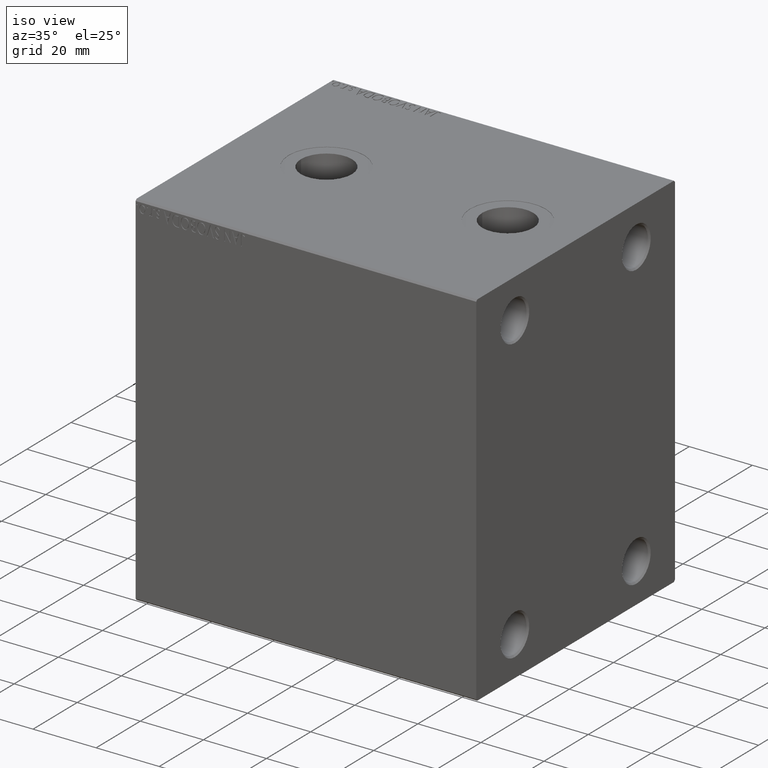
[diagram: clean part render]
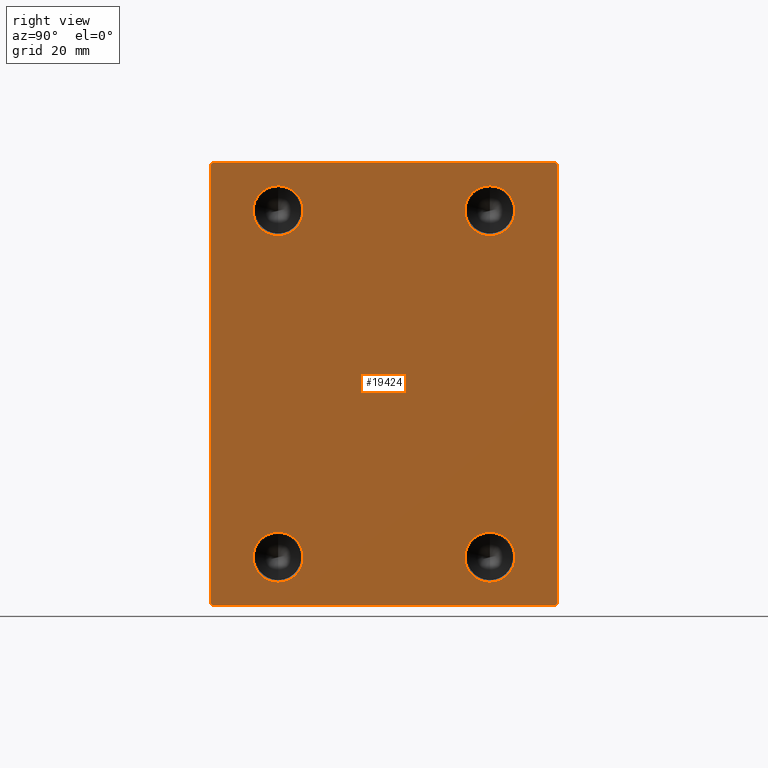
[diagram: tour spotlight — one face highlighted and labeled with its STEP entity id]
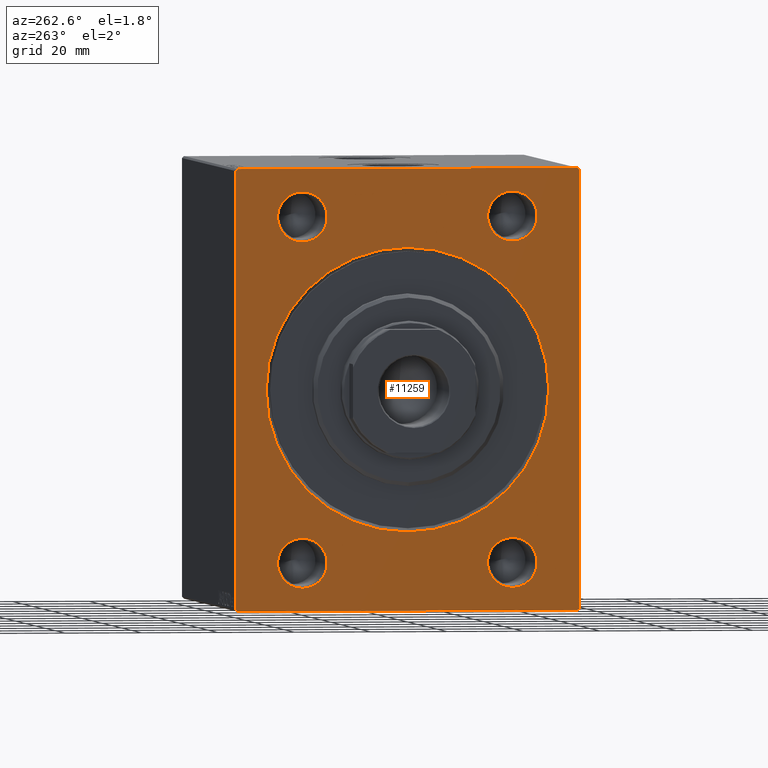
[diagram: tour spotlight — one face highlighted and labeled with its STEP entity id]
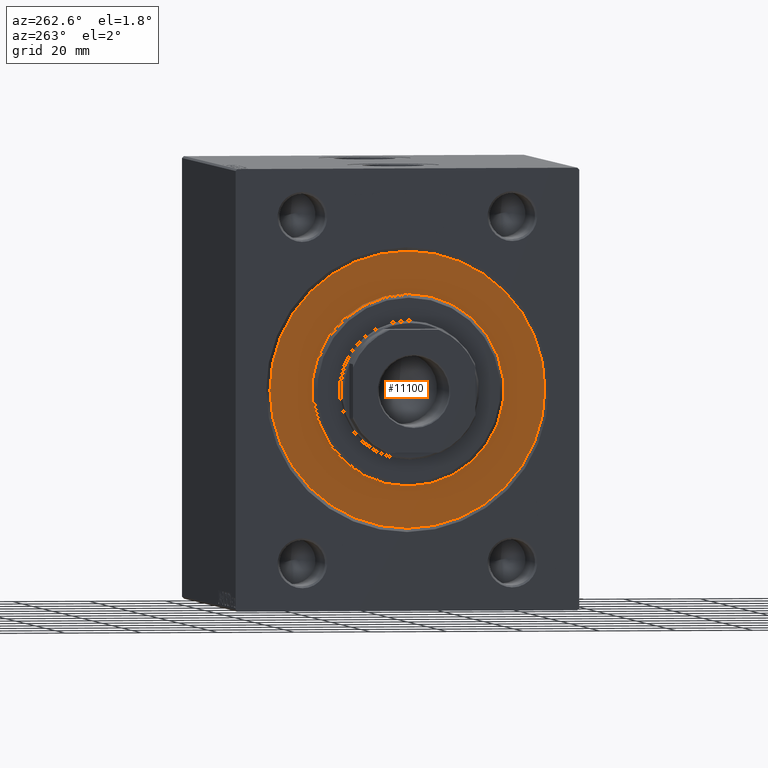
[diagram: tour spotlight — one face highlighted and labeled with its STEP entity id]
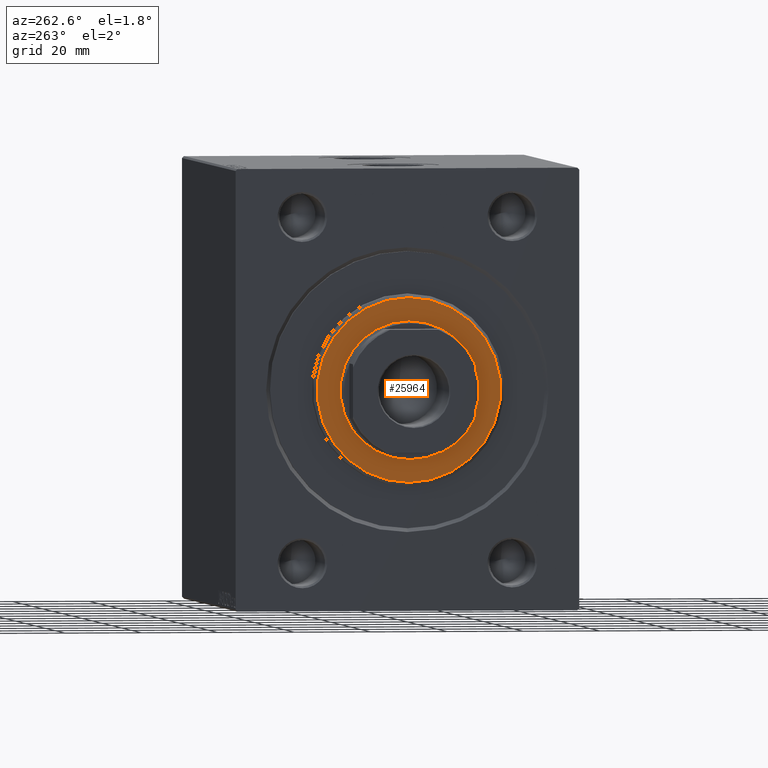
[diagram: tour spotlight — one face highlighted and labeled with its STEP entity id]
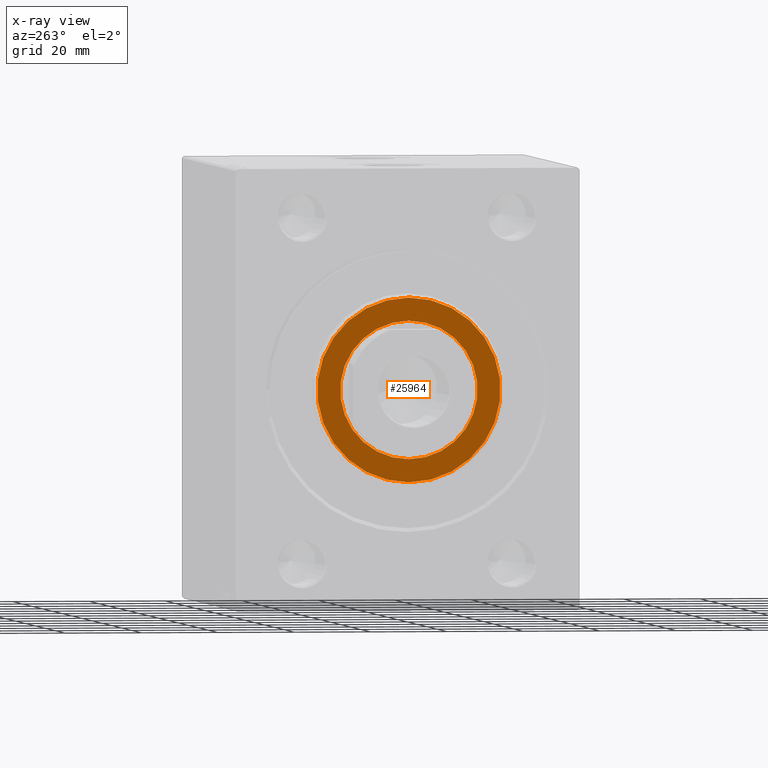
[diagram: x-ray of the same camera — body ghosted, this tour face saturated]
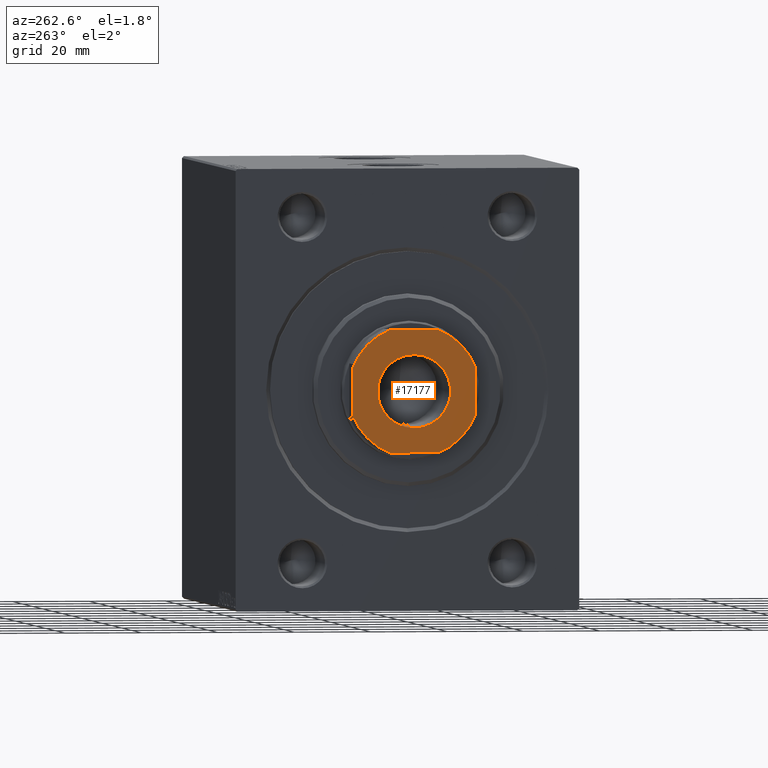
[diagram: tour spotlight — one face highlighted and labeled with its STEP entity id]
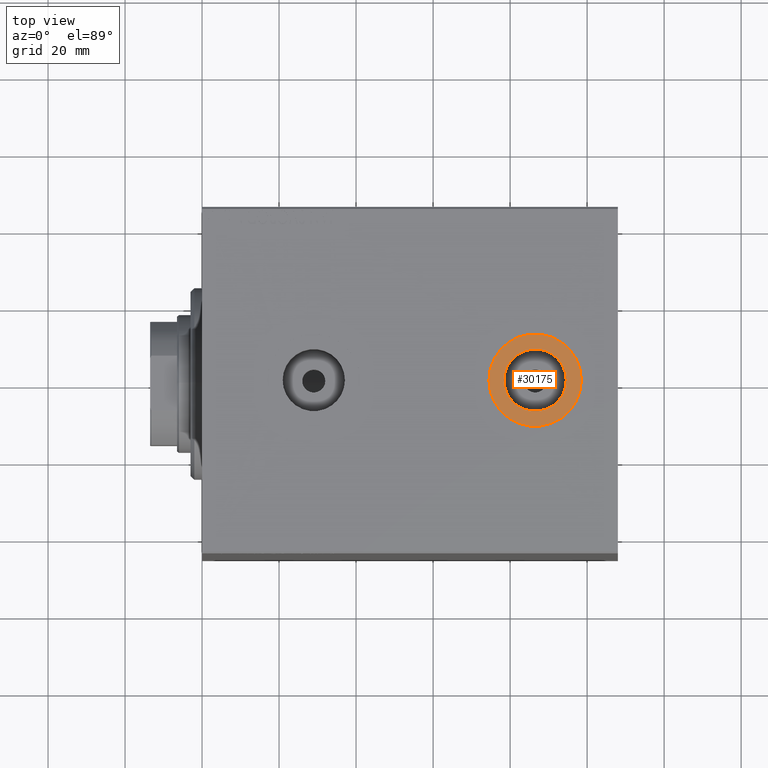
[diagram: tour spotlight — one face highlighted and labeled with its STEP entity id]
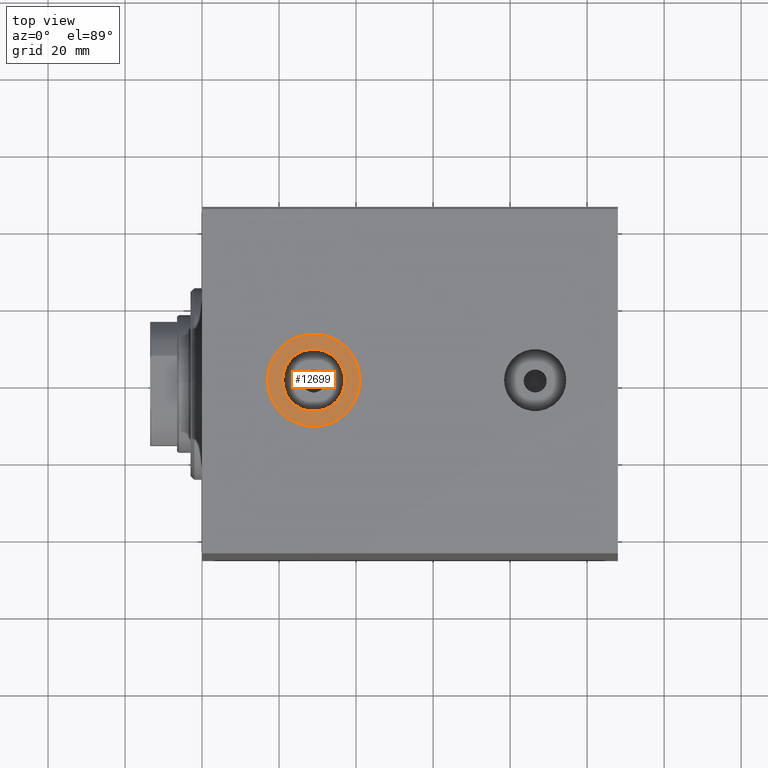
[diagram: tour spotlight — one face highlighted and labeled with its STEP entity id]
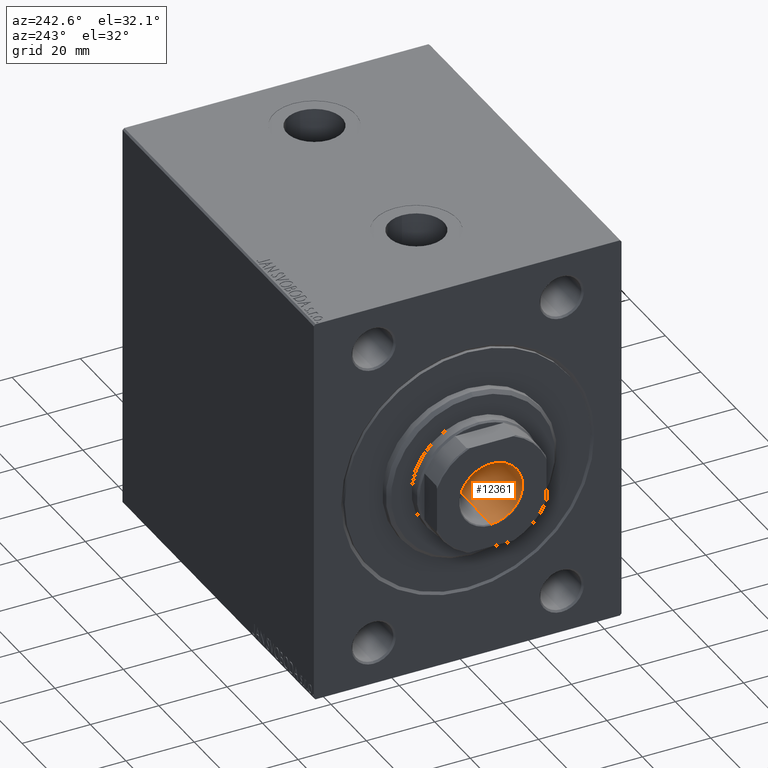
[diagram: tour spotlight — one face highlighted and labeled with its STEP entity id]
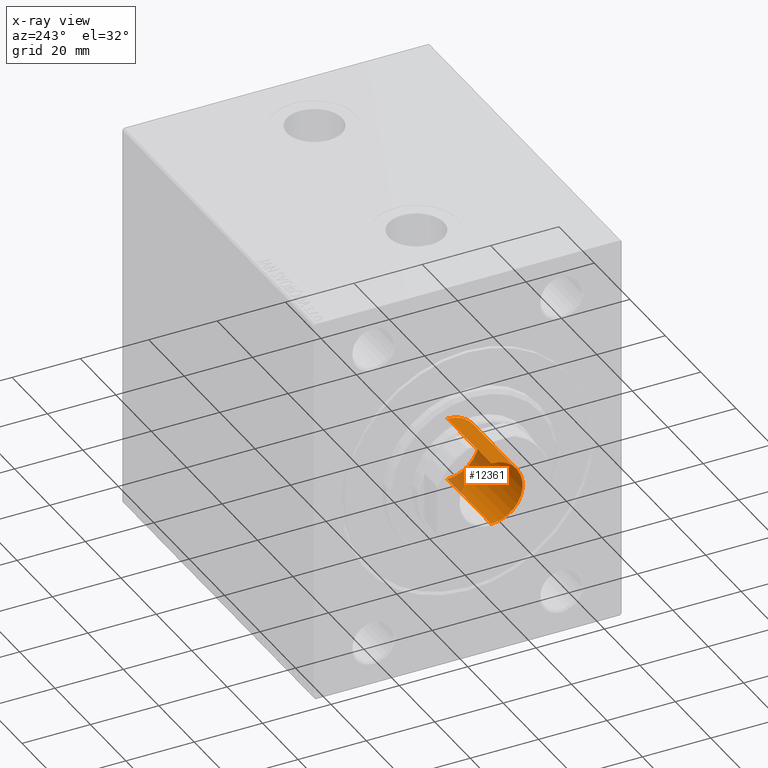
[diagram: x-ray of the same camera — body ghosted, this tour face saturated]
A machine part: a face-by-face anatomy tour. The part has 878 B-rep faces; the first image is the clean iso view, then the 8 largest visible faces are spotlighted one at a time (largest first), each with its STEP entity span.

Face 1 — right view, entity #19424. In plain terms, the highlighted planar face has unit normal (1, 0, 0).
Definition (entity closure, byte-faithful):
#211 = VERTEX_POINT ( 'NONE', #7944 ) ;
#395 = DIRECTION ( 'NONE',  ( 0.000000000000000000, 0.000000000000000000, -1.000000000000000000 ) ) ;
#743 = AXIS2_PLACEMENT_3D ( 'NONE', #25937, #36860, #5743 ) ;
#1066 = CARTESIAN_POINT ( 'NONE',  ( 108.0000000000000000, 27.50000000000000355, 51.49999999999999289 ) ) ;
#1541 = EDGE_CURVE ( 'NONE', #34842, #39267, #31454, .T. ) ;
#2011 = DIRECTION ( 'NONE',  ( 0.000000000000000000, -1.000000000000000000, -1.541976423090495140E-16 ) ) ;
#2191 = EDGE_LOOP ( 'NONE', ( #39550, #44273 ) ) ;
#2258 = LINE ( 'NONE', #36306, #21027 ) ;
#2892 = LINE ( 'NONE', #36728, #42472 ) ;
#3232 = DIRECTION ( 'NONE',  ( 1.000000000000000000, -0.000000000000000000, -0.000000000000000000 ) ) ;
#3598 = CIRCLE ( 'NONE', #28637, 6.500000000000005329 ) ;
#4536 = EDGE_CURVE ( 'NONE', #25304, #30755, #33655, .T. ) ;
#4652 = DIRECTION ( 'NONE',  ( 1.000000000000000000, -0.000000000000000000, -0.000000000000000000 ) ) ;
#4927 = AXIS2_PLACEMENT_3D ( 'NONE', #14219, #27916, #41555 ) ;
#5082 = EDGE_CURVE ( 'NONE', #39267, #34842, #3598, .T. ) ;
#5743 = DIRECTION ( 'NONE',  ( 0.000000000000000000, 0.000000000000000000, -1.000000000000000000 ) ) ;
#5902 = AXIS2_PLACEMENT_3D ( 'NONE', #8014, #4652, #18320 ) ;
#5955 = ORIENTED_EDGE ( 'NONE', *, *, #21473, .F. ) ;
#6020 = LINE ( 'NONE', #9589, #21380 ) ;
#6212 = VERTEX_POINT ( 'NONE', #17502 ) ;
#6313 = CARTESIAN_POINT ( 'NONE',  ( 108.0000000000000000, 45.00000000000002842, -57.49999999999999289 ) ) ;
#6591 = CARTESIAN_POINT ( 'NONE',  ( 108.0000000000000000, -44.50000000000002842, -57.49999999999999289 ) ) ;
#6632 = CARTESIAN_POINT ( 'NONE',  ( 108.0000000000000000, 0.000000000000000000, 0.000000000000000000 ) ) ;
#6659 = CIRCLE ( 'NONE', #8795, 6.500000000000005329 ) ;
#6951 = VERTEX_POINT ( 'NONE', #29995 ) ;
#7390 = DIRECTION ( 'NONE',  ( 0.000000000000000000, 0.000000000000000000, -1.000000000000000000 ) ) ;
#7944 = CARTESIAN_POINT ( 'NONE',  ( 108.0000000000000000, -27.49999999999999645, 51.49999999999999289 ) ) ;
#8014 = CARTESIAN_POINT ( 'NONE',  ( 108.0000000000000000, 27.50000000000000355, 44.99999999999998579 ) ) ;
#8017 = ORIENTED_EDGE ( 'NONE', *, *, #38703, .F. ) ;
#8129 = VECTOR ( 'NONE', #7390, 1000.000000000000000 ) ;
#8350 = AXIS2_PLACEMENT_3D ( 'NONE', #6632, #33962, #27263 ) ;
#8569 = VECTOR ( 'NONE', #2011, 1000.000000000000000 ) ;
#8795 = AXIS2_PLACEMENT_3D ( 'NONE', #36041, #26210, #26430 ) ;
#8960 = EDGE_LOOP ( 'NONE', ( #5955, #42539 ) ) ;
#9449 = LINE ( 'NONE', #6313, #27486 ) ;
#9589 = CARTESIAN_POINT ( 'NONE',  ( 108.0000000000000000, 51.00000000000000711, 51.00000000000000711 ) ) ;
#10501 = ORIENTED_EDGE ( 'NONE', *, *, #42749, .T. ) ;
#10647 = PLANE ( 'NONE',  #8350 ) ;
#11116 = ORIENTED_EDGE ( 'NONE', *, *, #12966, .T. ) ;
#12409 = CARTESIAN_POINT ( 'NONE',  ( 108.0000000000000000, -27.49999999999999645, -38.50000000000000711 ) ) ;
#12966 = EDGE_CURVE ( 'NONE', #17617, #6212, #9449, .T. ) ;
#13242 = EDGE_CURVE ( 'NONE', #35588, #30765, #2892, .T. ) ;
#13535 = CARTESIAN_POINT ( 'NONE',  ( 108.0000000000000000, 27.50000000000000355, -45.00000000000001421 ) ) ;
#13568 = FACE_OUTER_BOUND ( 'NONE', #33879, .T. ) ;
#14008 = FACE_BOUND ( 'NONE', #2191, .T. ) ;
#14135 = ORIENTED_EDGE ( 'NONE', *, *, #16827, .F. ) ;
#14219 = CARTESIAN_POINT ( 'NONE',  ( 108.0000000000000000, -27.49999999999999645, 44.99999999999998579 ) ) ;
#14766 = ORIENTED_EDGE ( 'NONE', *, *, #39255, .T. ) ;
#15549 = CARTESIAN_POINT ( 'NONE',  ( 108.0000000000000000, 44.50000000000002842, -57.49999999999999289 ) ) ;
#15692 = LINE ( 'NONE', #38985, #8569 ) ;
#16222 = VERTEX_POINT ( 'NONE', #26593 ) ;
#16311 = EDGE_CURVE ( 'NONE', #31792, #211, #33564, .T. ) ;
#16353 = VERTEX_POINT ( 'NONE', #37305 ) ;
#16399 = CARTESIAN_POINT ( 'NONE',  ( 108.0000000000000000, -27.49999999999999645, -51.50000000000002132 ) ) ;
#16827 = EDGE_CURVE ( 'NONE', #6951, #34552, #28585, .T. ) ;
#17074 = ORIENTED_EDGE ( 'NONE', *, *, #27524, .T. ) ;
#17425 = ORIENTED_EDGE ( 'NONE', *, *, #24642, .T. ) ;
#17502 = CARTESIAN_POINT ( 'NONE',  ( 108.0000000000000000, 45.00000000000001421, 57.00000000000000711 ) ) ;
#17617 = VERTEX_POINT ( 'NONE', #36520 ) ;
#17914 = CARTESIAN_POINT ( 'NONE',  ( 108.0000000000000000, -45.00000000000000000, 57.49999999999999289 ) ) ;
#18320 = DIRECTION ( 'NONE',  ( 0.000000000000000000, 0.000000000000000000, -1.000000000000000000 ) ) ;
#18600 = CARTESIAN_POINT ( 'NONE',  ( 108.0000000000000000, -44.49999999999997158, 57.49999999999999289 ) ) ;
#19424 = ADVANCED_FACE ( 'NONE', ( #37310, #41560, #14008, #27703, #13568 ), #10647, .T. ) ;
#19464 = DIRECTION ( 'NONE',  ( -0.000000000000000000, -0.7071067811865474617, 0.7071067811865474617 ) ) ;
#19865 = CARTESIAN_POINT ( 'NONE',  ( 108.0000000000000000, -51.00000000000000000, 51.00000000000000000 ) ) ;
#20005 = AXIS2_PLACEMENT_3D ( 'NONE', #21019, #21458, #395 ) ;
#20621 = AXIS2_PLACEMENT_3D ( 'NONE', #40634, #27889, #37721 ) ;
#21019 = CARTESIAN_POINT ( 'NONE',  ( 108.0000000000000000, 27.50000000000000355, 44.99999999999998579 ) ) ;
#21027 = VECTOR ( 'NONE', #22452, 1000.000000000000114 ) ;
#21380 = VECTOR ( 'NONE', #19464, 1000.000000000000114 ) ;
#21412 = AXIS2_PLACEMENT_3D ( 'NONE', #13535, #3232, #27000 ) ;
#21458 = DIRECTION ( 'NONE',  ( 1.000000000000000000, -0.000000000000000000, -0.000000000000000000 ) ) ;
#21473 = EDGE_CURVE ( 'NONE', #211, #31792, #25625, .T. ) ;
#21482 = CARTESIAN_POINT ( 'NONE',  ( 108.0000000000000000, -27.49999999999999645, 38.49999999999997868 ) ) ;
#22452 = DIRECTION ( 'NONE',  ( -0.000000000000000000, 0.7071067811865474617, 0.7071067811865474617 ) ) ;
#23092 = DIRECTION ( 'NONE',  ( 0.000000000000000000, 1.000000000000000000, 0.000000000000000000 ) ) ;
#24622 = DIRECTION ( 'NONE',  ( 0.000000000000000000, 0.000000000000000000, -1.000000000000000000 ) ) ;
#24642 = EDGE_CURVE ( 'NONE', #25591, #16222, #37100, .T. ) ;
#25253 = DIRECTION ( 'NONE',  ( -0.000000000000000000, 0.7071067811865474617, -0.7071067811865474617 ) ) ;
#25269 = VECTOR ( 'NONE', #25253, 1000.000000000000114 ) ;
#25304 = VERTEX_POINT ( 'NONE', #16399 ) ;
#25591 = VERTEX_POINT ( 'NONE', #18600 ) ;
#25625 = CIRCLE ( 'NONE', #20621, 6.500000000000005329 ) ;
#25937 = CARTESIAN_POINT ( 'NONE',  ( 108.0000000000000000, -27.49999999999999645, -45.00000000000001421 ) ) ;
#26210 = DIRECTION ( 'NONE',  ( 1.000000000000000000, -0.000000000000000000, -0.000000000000000000 ) ) ;
#26430 = DIRECTION ( 'NONE',  ( 0.000000000000000000, 0.000000000000000000, -1.000000000000000000 ) ) ;
#26593 = CARTESIAN_POINT ( 'NONE',  ( 108.0000000000000000, -45.00000000000000000, 56.99999999999999289 ) ) ;
#27000 = DIRECTION ( 'NONE',  ( 0.000000000000000000, 0.000000000000000000, -1.000000000000000000 ) ) ;
#27263 = DIRECTION ( 'NONE',  ( 0.000000000000000000, 0.000000000000000000, -1.000000000000000000 ) ) ;
#27486 = VECTOR ( 'NONE', #37217, 1000.000000000000000 ) ;
#27524 = EDGE_CURVE ( 'NONE', #6212, #16353, #6020, .T. ) ;
#27703 = FACE_BOUND ( 'NONE', #40658, .T. ) ;
#27889 = DIRECTION ( 'NONE',  ( 1.000000000000000000, -0.000000000000000000, -0.000000000000000000 ) ) ;
#27916 = DIRECTION ( 'NONE',  ( 1.000000000000000000, -0.000000000000000000, -0.000000000000000000 ) ) ;
#27972 = DIRECTION ( 'NONE',  ( 1.000000000000000000, -0.000000000000000000, -0.000000000000000000 ) ) ;
#28585 = CIRCLE ( 'NONE', #20005, 6.500000000000005329 ) ;
#28637 = AXIS2_PLACEMENT_3D ( 'NONE', #31319, #27972, #24622 ) ;
#29944 = CARTESIAN_POINT ( 'NONE',  ( 108.0000000000000000, 27.50000000000000355, -38.50000000000000711 ) ) ;
#29995 = CARTESIAN_POINT ( 'NONE',  ( 108.0000000000000000, 27.50000000000000355, 38.49999999999997868 ) ) ;
#30181 = DIRECTION ( 'NONE',  ( 0.000000000000000000, -0.7071067811865474617, -0.7071067811865474617 ) ) ;
#30755 = VERTEX_POINT ( 'NONE', #12409 ) ;
#30765 = VERTEX_POINT ( 'NONE', #15549 ) ;
#31319 = CARTESIAN_POINT ( 'NONE',  ( 108.0000000000000000, 27.50000000000000355, -45.00000000000001421 ) ) ;
#31454 = CIRCLE ( 'NONE', #21412, 6.500000000000005329 ) ;
#31705 = EDGE_CURVE ( 'NONE', #16353, #25591, #15692, .T. ) ;
#31792 = VERTEX_POINT ( 'NONE', #21482 ) ;
#32328 = ORIENTED_EDGE ( 'NONE', *, *, #13242, .T. ) ;
#32715 = ORIENTED_EDGE ( 'NONE', *, *, #31705, .T. ) ;
#33564 = CIRCLE ( 'NONE', #4927, 6.500000000000005329 ) ;
#33655 = CIRCLE ( 'NONE', #743, 6.500000000000005329 ) ;
#33879 = EDGE_LOOP ( 'NONE', ( #32715, #17425, #40596, #14766, #32328, #10501, #11116, #17074 ) ) ;
#33962 = DIRECTION ( 'NONE',  ( 1.000000000000000000, 0.000000000000000000, 0.000000000000000000 ) ) ;
#33980 = ORIENTED_EDGE ( 'NONE', *, *, #5082, .F. ) ;
#34279 = LINE ( 'NONE', #17914, #8129 ) ;
#34552 = VERTEX_POINT ( 'NONE', #1066 ) ;
#34842 = VERTEX_POINT ( 'NONE', #29944 ) ;
#34960 = VECTOR ( 'NONE', #30181, 1000.000000000000114 ) ;
#35588 = VERTEX_POINT ( 'NONE', #6591 ) ;
#35741 = LINE ( 'NONE', #39095, #25269 ) ;
#35745 = VERTEX_POINT ( 'NONE', #42621 ) ;
#36041 = CARTESIAN_POINT ( 'NONE',  ( 108.0000000000000000, -27.49999999999999645, -45.00000000000001421 ) ) ;
#36187 = CARTESIAN_POINT ( 'NONE',  ( 108.0000000000000000, 27.50000000000000355, -51.50000000000002132 ) ) ;
#36306 = CARTESIAN_POINT ( 'NONE',  ( 108.0000000000000000, 51.00000000000000711, -51.00000000000000711 ) ) ;
#36437 = ORIENTED_EDGE ( 'NONE', *, *, #1541, .F. ) ;
#36520 = CARTESIAN_POINT ( 'NONE',  ( 108.0000000000000000, 45.00000000000002842, -56.99999999999999289 ) ) ;
#36728 = CARTESIAN_POINT ( 'NONE',  ( 108.0000000000000000, -45.00000000000000000, -57.49999999999999289 ) ) ;
#36860 = DIRECTION ( 'NONE',  ( 1.000000000000000000, -0.000000000000000000, -0.000000000000000000 ) ) ;
#37100 = LINE ( 'NONE', #19865, #34960 ) ;
#37217 = DIRECTION ( 'NONE',  ( 0.000000000000000000, -1.206764157201257045E-16, 1.000000000000000000 ) ) ;
#37305 = CARTESIAN_POINT ( 'NONE',  ( 108.0000000000000000, 44.50000000000001421, 57.50000000000000711 ) ) ;
#37310 = FACE_BOUND ( 'NONE', #40699, .T. ) ;
#37355 = CIRCLE ( 'NONE', #5902, 6.500000000000005329 ) ;
#37721 = DIRECTION ( 'NONE',  ( 0.000000000000000000, 0.000000000000000000, -1.000000000000000000 ) ) ;
#38703 = EDGE_CURVE ( 'NONE', #34552, #6951, #37355, .T. ) ;
#38985 = CARTESIAN_POINT ( 'NONE',  ( 108.0000000000000000, 45.00000000000001421, 57.50000000000000711 ) ) ;
#39095 = CARTESIAN_POINT ( 'NONE',  ( 108.0000000000000000, -51.00000000000000711, -51.00000000000000711 ) ) ;
#39255 = EDGE_CURVE ( 'NONE', #35745, #35588, #35741, .T. ) ;
#39267 = VERTEX_POINT ( 'NONE', #36187 ) ;
#39550 = ORIENTED_EDGE ( 'NONE', *, *, #40571, .F. ) ;
#40571 = EDGE_CURVE ( 'NONE', #30755, #25304, #6659, .T. ) ;
#40596 = ORIENTED_EDGE ( 'NONE', *, *, #42968, .T. ) ;
#40634 = CARTESIAN_POINT ( 'NONE',  ( 108.0000000000000000, -27.49999999999999645, 44.99999999999998579 ) ) ;
#40658 = EDGE_LOOP ( 'NONE', ( #36437, #33980 ) ) ;
#40699 = EDGE_LOOP ( 'NONE', ( #8017, #14135 ) ) ;
#41555 = DIRECTION ( 'NONE',  ( 0.000000000000000000, 0.000000000000000000, -1.000000000000000000 ) ) ;
#41560 = FACE_BOUND ( 'NONE', #8960, .T. ) ;
#42472 = VECTOR ( 'NONE', #23092, 1000.000000000000000 ) ;
#42539 = ORIENTED_EDGE ( 'NONE', *, *, #16311, .F. ) ;
#42621 = CARTESIAN_POINT ( 'NONE',  ( 108.0000000000000000, -45.00000000000000000, -57.00000000000002132 ) ) ;
#42749 = EDGE_CURVE ( 'NONE', #30765, #17617, #2258, .T. ) ;
#42968 = EDGE_CURVE ( 'NONE', #16222, #35745, #34279, .T. ) ;
#44273 = ORIENTED_EDGE ( 'NONE', *, *, #4536, .F. ) ;

Face 2 — auxiliary view, entity #11259. In plain terms, the highlighted planar face has unit normal (1, 0, 0).
Definition (entity closure, byte-faithful):
#72 = CIRCLE ( 'NONE', #43690, 6.500000000000005329 ) ;
#126 = LINE ( 'NONE', #16940, #25722 ) ;
#194 = VECTOR ( 'NONE', #32663, 1000.000000000000000 ) ;
#272 = DIRECTION ( 'NONE',  ( 0.000000000000000000, -1.206764157201257045E-16, 1.000000000000000000 ) ) ;
#487 = AXIS2_PLACEMENT_3D ( 'NONE', #37018, #20012, #3203 ) ;
#519 = EDGE_LOOP ( 'NONE', ( #33427, #18024 ) ) ;
#561 = EDGE_CURVE ( 'NONE', #9230, #19563, #13505, .T. ) ;
#703 = CARTESIAN_POINT ( 'NONE',  ( 0.000000000000000000, -27.49999999999999645, -51.50000000000002132 ) ) ;
#934 = LINE ( 'NONE', #21551, #39495 ) ;
#1272 = CARTESIAN_POINT ( 'NONE',  ( 0.000000000000000000, 0.000000000000000000, 0.000000000000000000 ) ) ;
#1290 = CARTESIAN_POINT ( 'NONE',  ( 0.000000000000000000, 4.531193156845207581E-15, -37.00000000000000711 ) ) ;
#1462 = VERTEX_POINT ( 'NONE', #1290 ) ;
#1742 = LINE ( 'NONE', #9120, #36673 ) ;
#1808 = CARTESIAN_POINT ( 'NONE',  ( 0.000000000000000000, -45.00000000000000000, 56.99999999999999289 ) ) ;
#1864 = ORIENTED_EDGE ( 'NONE', *, *, #44137, .T. ) ;
#2024 = CARTESIAN_POINT ( 'NONE',  ( 0.000000000000000000, -45.00000000000000000, 57.49999999999999289 ) ) ;
#2151 = VECTOR ( 'NONE', #41925, 1000.000000000000114 ) ;
#2718 = CIRCLE ( 'NONE', #40643, 6.500000000000005329 ) ;
#3203 = DIRECTION ( 'NONE',  ( 0.000000000000000000, 0.000000000000000000, -1.000000000000000000 ) ) ;
#3719 = EDGE_CURVE ( 'NONE', #42785, #8016, #30093, .T. ) ;
#3733 = EDGE_CURVE ( 'NONE', #22774, #5528, #13720, .T. ) ;
#3746 = CARTESIAN_POINT ( 'NONE',  ( 0.000000000000000000, -27.49999999999999645, -45.00000000000001421 ) ) ;
#4230 = CARTESIAN_POINT ( 'NONE',  ( 0.000000000000000000, 44.50000000000001421, 57.50000000000000711 ) ) ;
#4346 = CARTESIAN_POINT ( 'NONE',  ( 0.000000000000000000, 45.00000000000001421, 57.00000000000000711 ) ) ;
#4834 = ORIENTED_EDGE ( 'NONE', *, *, #3733, .T. ) ;
#4866 = VECTOR ( 'NONE', #36305, 1000.000000000000000 ) ;
#4951 = EDGE_LOOP ( 'NONE', ( #26293, #1864 ) ) ;
#4981 = ORIENTED_EDGE ( 'NONE', *, *, #16883, .T. ) ;
#5517 = CARTESIAN_POINT ( 'NONE',  ( 0.000000000000000000, 44.50000000000001421, 57.50000000000000711 ) ) ;
#5528 = VERTEX_POINT ( 'NONE', #29018 ) ;
#5835 = CIRCLE ( 'NONE', #30141, 6.500000000000005329 ) ;
#6312 = DIRECTION ( 'NONE',  ( 0.000000000000000000, 0.000000000000000000, -1.000000000000000000 ) ) ;
#6375 = ORIENTED_EDGE ( 'NONE', *, *, #23021, .T. ) ;
#7124 = CARTESIAN_POINT ( 'NONE',  ( 0.000000000000000000, 0.000000000000000000, 0.000000000000000000 ) ) ;
#7329 = AXIS2_PLACEMENT_3D ( 'NONE', #20792, #38027, #38688 ) ;
#7562 = DIRECTION ( 'NONE',  ( 0.000000000000000000, 0.000000000000000000, -1.000000000000000000 ) ) ;
#7951 = CARTESIAN_POINT ( 'NONE',  ( 0.000000000000000000, 27.50000000000000355, 38.49999999999997868 ) ) ;
#7998 = DIRECTION ( 'NONE',  ( 1.000000000000000000, 0.000000000000000000, 0.000000000000000000 ) ) ;
#8016 = VERTEX_POINT ( 'NONE', #33747 ) ;
#8430 = DIRECTION ( 'NONE',  ( 0.000000000000000000, 0.000000000000000000, -1.000000000000000000 ) ) ;
#8827 = DIRECTION ( 'NONE',  ( 0.000000000000000000, 0.000000000000000000, -1.000000000000000000 ) ) ;
#9120 = CARTESIAN_POINT ( 'NONE',  ( 0.000000000000000000, -44.50000000000002842, -57.49999999999999289 ) ) ;
#9230 = VERTEX_POINT ( 'NONE', #29913 ) ;
#9247 = CIRCLE ( 'NONE', #9987, 37.00000000000000711 ) ;
#9388 = VERTEX_POINT ( 'NONE', #4346 ) ;
#9692 = EDGE_CURVE ( 'NONE', #22774, #9388, #934, .T. ) ;
#9987 = AXIS2_PLACEMENT_3D ( 'NONE', #7124, #17652, #7562 ) ;
#10260 = VERTEX_POINT ( 'NONE', #31252 ) ;
#10600 = AXIS2_PLACEMENT_3D ( 'NONE', #34927, #10966, #34717 ) ;
#10601 = DIRECTION ( 'NONE',  ( 1.000000000000000000, 0.000000000000000000, 0.000000000000000000 ) ) ;
#10966 = DIRECTION ( 'NONE',  ( 1.000000000000000000, 0.000000000000000000, 0.000000000000000000 ) ) ;
#11151 = EDGE_LOOP ( 'NONE', ( #33415, #6375 ) ) ;
#11259 = ADVANCED_FACE ( 'NONE', ( #18522, #14723, #11354, #32421, #42707, #35995 ), #38689, .F. ) ;
#11354 = FACE_BOUND ( 'NONE', #11151, .T. ) ;
#13036 = CARTESIAN_POINT ( 'NONE',  ( 0.000000000000000000, -27.49999999999999645, -45.00000000000001421 ) ) ;
#13505 = CIRCLE ( 'NONE', #19970, 6.500000000000005329 ) ;
#13658 = ORIENTED_EDGE ( 'NONE', *, *, #38908, .T. ) ;
#13720 = LINE ( 'NONE', #34335, #2151 ) ;
#14565 = DIRECTION ( 'NONE',  ( 0.000000000000000000, 0.000000000000000000, -1.000000000000000000 ) ) ;
#14702 = EDGE_CURVE ( 'NONE', #16181, #9388, #41425, .T. ) ;
#14723 = FACE_BOUND ( 'NONE', #43147, .T. ) ;
#15011 = VECTOR ( 'NONE', #33235, 1000.000000000000114 ) ;
#16001 = CARTESIAN_POINT ( 'NONE',  ( 0.000000000000000000, 0.000000000000000000, 0.000000000000000000 ) ) ;
#16181 = VERTEX_POINT ( 'NONE', #5517 ) ;
#16469 = VERTEX_POINT ( 'NONE', #26488 ) ;
#16883 = EDGE_CURVE ( 'NONE', #1462, #29302, #9247, .T. ) ;
#16940 = CARTESIAN_POINT ( 'NONE',  ( 0.000000000000000000, 45.00000000000001421, 57.50000000000000711 ) ) ;
#17219 = DIRECTION ( 'NONE',  ( 1.000000000000000000, 0.000000000000000000, 0.000000000000000000 ) ) ;
#17336 = CARTESIAN_POINT ( 'NONE',  ( 0.000000000000000000, 27.50000000000000355, -45.00000000000001421 ) ) ;
#17418 = DIRECTION ( 'NONE',  ( 0.000000000000000000, 0.000000000000000000, -1.000000000000000000 ) ) ;
#17652 = DIRECTION ( 'NONE',  ( 1.000000000000000000, 0.000000000000000000, 0.000000000000000000 ) ) ;
#17774 = CIRCLE ( 'NONE', #10600, 6.500000000000005329 ) ;
#18004 = ORIENTED_EDGE ( 'NONE', *, *, #9692, .F. ) ;
#18024 = ORIENTED_EDGE ( 'NONE', *, *, #18736, .T. ) ;
#18185 = CARTESIAN_POINT ( 'NONE',  ( 0.000000000000000000, 27.50000000000000355, -51.50000000000002132 ) ) ;
#18336 = CIRCLE ( 'NONE', #487, 6.500000000000005329 ) ;
#18522 = FACE_BOUND ( 'NONE', #25708, .T. ) ;
#18736 = EDGE_CURVE ( 'NONE', #19563, #9230, #18336, .T. ) ;
#18771 = AXIS2_PLACEMENT_3D ( 'NONE', #1272, #7998, #8430 ) ;
#18997 = DIRECTION ( 'NONE',  ( -0.000000000000000000, -0.7071067811865474617, 0.7071067811865474617 ) ) ;
#19090 = VERTEX_POINT ( 'NONE', #38249 ) ;
#19215 = CARTESIAN_POINT ( 'NONE',  ( 0.000000000000000000, -45.00000000000000000, -57.49999999999999289 ) ) ;
#19394 = ORIENTED_EDGE ( 'NONE', *, *, #3719, .T. ) ;
#19563 = VERTEX_POINT ( 'NONE', #7951 ) ;
#19607 = EDGE_CURVE ( 'NONE', #29302, #1462, #31272, .T. ) ;
#19970 = AXIS2_PLACEMENT_3D ( 'NONE', #38960, #42550, #14565 ) ;
#20012 = DIRECTION ( 'NONE',  ( 1.000000000000000000, 0.000000000000000000, 0.000000000000000000 ) ) ;
#20792 = CARTESIAN_POINT ( 'NONE',  ( 0.000000000000000000, 27.50000000000000355, -45.00000000000001421 ) ) ;
#20828 = CARTESIAN_POINT ( 'NONE',  ( 0.000000000000000000, 0.000000000000000000, 37.00000000000000711 ) ) ;
#20884 = EDGE_CURVE ( 'NONE', #42687, #19090, #37714, .T. ) ;
#21551 = CARTESIAN_POINT ( 'NONE',  ( 0.000000000000000000, 45.00000000000002842, -57.49999999999999289 ) ) ;
#22774 = VERTEX_POINT ( 'NONE', #43257 ) ;
#22859 = EDGE_CURVE ( 'NONE', #42785, #10260, #36087, .T. ) ;
#23021 = EDGE_CURVE ( 'NONE', #24583, #24818, #17774, .T. ) ;
#23072 = DIRECTION ( 'NONE',  ( 0.000000000000000000, 0.000000000000000000, -1.000000000000000000 ) ) ;
#24371 = DIRECTION ( 'NONE',  ( 1.000000000000000000, 0.000000000000000000, 0.000000000000000000 ) ) ;
#24583 = VERTEX_POINT ( 'NONE', #37877 ) ;
#24818 = VERTEX_POINT ( 'NONE', #31936 ) ;
#25138 = ORIENTED_EDGE ( 'NONE', *, *, #38924, .F. ) ;
#25708 = EDGE_LOOP ( 'NONE', ( #33651, #4981 ) ) ;
#25722 = VECTOR ( 'NONE', #30619, 1000.000000000000000 ) ;
#26293 = ORIENTED_EDGE ( 'NONE', *, *, #35177, .T. ) ;
#26488 = CARTESIAN_POINT ( 'NONE',  ( 0.000000000000000000, 27.50000000000000355, -38.50000000000000711 ) ) ;
#26663 = CIRCLE ( 'NONE', #7329, 6.500000000000005329 ) ;
#26711 = EDGE_CURVE ( 'NONE', #19090, #42687, #2718, .T. ) ;
#26731 = DIRECTION ( 'NONE',  ( 1.000000000000000000, 0.000000000000000000, 0.000000000000000000 ) ) ;
#27329 = CARTESIAN_POINT ( 'NONE',  ( 0.000000000000000000, -27.49999999999999645, 44.99999999999998579 ) ) ;
#27939 = ORIENTED_EDGE ( 'NONE', *, *, #22859, .F. ) ;
#28724 = EDGE_CURVE ( 'NONE', #16181, #8016, #126, .T. ) ;
#29018 = CARTESIAN_POINT ( 'NONE',  ( 0.000000000000000000, 44.50000000000002842, -57.49999999999999289 ) ) ;
#29124 = AXIS2_PLACEMENT_3D ( 'NONE', #16001, #36596, #8827 ) ;
#29302 = VERTEX_POINT ( 'NONE', #20828 ) ;
#29913 = CARTESIAN_POINT ( 'NONE',  ( 0.000000000000000000, 27.50000000000000355, 51.49999999999999289 ) ) ;
#30093 = LINE ( 'NONE', #40379, #15011 ) ;
#30141 = AXIS2_PLACEMENT_3D ( 'NONE', #17336, #10601, #38151 ) ;
#30235 = VECTOR ( 'NONE', #30928, 1000.000000000000114 ) ;
#30619 = DIRECTION ( 'NONE',  ( 0.000000000000000000, -1.000000000000000000, -1.541976423090495140E-16 ) ) ;
#30928 = DIRECTION ( 'NONE',  ( -0.000000000000000000, 0.7071067811865474617, -0.7071067811865474617 ) ) ;
#31189 = ORIENTED_EDGE ( 'NONE', *, *, #28724, .F. ) ;
#31252 = CARTESIAN_POINT ( 'NONE',  ( 0.000000000000000000, -45.00000000000000000, -57.00000000000002132 ) ) ;
#31272 = CIRCLE ( 'NONE', #29124, 37.00000000000000711 ) ;
#31936 = CARTESIAN_POINT ( 'NONE',  ( 0.000000000000000000, -27.49999999999999645, 51.49999999999999289 ) ) ;
#32421 = FACE_BOUND ( 'NONE', #519, .T. ) ;
#32663 = DIRECTION ( 'NONE',  ( 0.000000000000000000, 1.000000000000000000, 0.000000000000000000 ) ) ;
#32738 = AXIS2_PLACEMENT_3D ( 'NONE', #13036, #26731, #6312 ) ;
#33114 = LINE ( 'NONE', #19215, #194 ) ;
#33235 = DIRECTION ( 'NONE',  ( -0.000000000000000000, 0.7071067811865474617, 0.7071067811865474617 ) ) ;
#33415 = ORIENTED_EDGE ( 'NONE', *, *, #34434, .T. ) ;
#33427 = ORIENTED_EDGE ( 'NONE', *, *, #561, .T. ) ;
#33651 = ORIENTED_EDGE ( 'NONE', *, *, #19607, .T. ) ;
#33747 = CARTESIAN_POINT ( 'NONE',  ( 0.000000000000000000, -44.49999999999997158, 57.49999999999999289 ) ) ;
#34335 = CARTESIAN_POINT ( 'NONE',  ( 0.000000000000000000, 45.00000000000002842, -56.99999999999999289 ) ) ;
#34434 = EDGE_CURVE ( 'NONE', #24818, #24583, #72, .T. ) ;
#34717 = DIRECTION ( 'NONE',  ( 0.000000000000000000, 0.000000000000000000, -1.000000000000000000 ) ) ;
#34927 = CARTESIAN_POINT ( 'NONE',  ( 0.000000000000000000, -27.49999999999999645, 44.99999999999998579 ) ) ;
#35177 = EDGE_CURVE ( 'NONE', #16469, #39483, #5835, .T. ) ;
#35995 = FACE_OUTER_BOUND ( 'NONE', #42967, .T. ) ;
#36087 = LINE ( 'NONE', #2024, #4866 ) ;
#36305 = DIRECTION ( 'NONE',  ( 0.000000000000000000, 0.000000000000000000, -1.000000000000000000 ) ) ;
#36596 = DIRECTION ( 'NONE',  ( 1.000000000000000000, 0.000000000000000000, 0.000000000000000000 ) ) ;
#36673 = VECTOR ( 'NONE', #18997, 1000.000000000000114 ) ;
#36839 = ORIENTED_EDGE ( 'NONE', *, *, #14702, .T. ) ;
#37018 = CARTESIAN_POINT ( 'NONE',  ( 0.000000000000000000, 27.50000000000000355, 44.99999999999998579 ) ) ;
#37714 = CIRCLE ( 'NONE', #32738, 6.500000000000005329 ) ;
#37877 = CARTESIAN_POINT ( 'NONE',  ( 0.000000000000000000, -27.49999999999999645, 38.49999999999997868 ) ) ;
#38027 = DIRECTION ( 'NONE',  ( 1.000000000000000000, 0.000000000000000000, 0.000000000000000000 ) ) ;
#38151 = DIRECTION ( 'NONE',  ( 0.000000000000000000, 0.000000000000000000, -1.000000000000000000 ) ) ;
#38249 = CARTESIAN_POINT ( 'NONE',  ( 0.000000000000000000, -27.49999999999999645, -38.50000000000000711 ) ) ;
#38688 = DIRECTION ( 'NONE',  ( 0.000000000000000000, 0.000000000000000000, -1.000000000000000000 ) ) ;
#38689 = PLANE ( 'NONE',  #18771 ) ;
#38832 = ORIENTED_EDGE ( 'NONE', *, *, #26711, .T. ) ;
#38908 = EDGE_CURVE ( 'NONE', #40487, #10260, #1742, .T. ) ;
#38924 = EDGE_CURVE ( 'NONE', #40487, #5528, #33114, .T. ) ;
#38960 = CARTESIAN_POINT ( 'NONE',  ( 0.000000000000000000, 27.50000000000000355, 44.99999999999998579 ) ) ;
#39483 = VERTEX_POINT ( 'NONE', #18185 ) ;
#39495 = VECTOR ( 'NONE', #272, 1000.000000000000000 ) ;
#40379 = CARTESIAN_POINT ( 'NONE',  ( 0.000000000000000000, -45.00000000000000000, 56.99999999999999289 ) ) ;
#40487 = VERTEX_POINT ( 'NONE', #41932 ) ;
#40643 = AXIS2_PLACEMENT_3D ( 'NONE', #3746, #24371, #17418 ) ;
#41425 = LINE ( 'NONE', #4230, #30235 ) ;
#41661 = ORIENTED_EDGE ( 'NONE', *, *, #20884, .T. ) ;
#41925 = DIRECTION ( 'NONE',  ( 0.000000000000000000, -0.7071067811865474617, -0.7071067811865474617 ) ) ;
#41932 = CARTESIAN_POINT ( 'NONE',  ( 0.000000000000000000, -44.50000000000002842, -57.49999999999999289 ) ) ;
#42550 = DIRECTION ( 'NONE',  ( 1.000000000000000000, 0.000000000000000000, 0.000000000000000000 ) ) ;
#42687 = VERTEX_POINT ( 'NONE', #703 ) ;
#42707 = FACE_BOUND ( 'NONE', #4951, .T. ) ;
#42785 = VERTEX_POINT ( 'NONE', #1808 ) ;
#42967 = EDGE_LOOP ( 'NONE', ( #27939, #19394, #31189, #36839, #18004, #4834, #25138, #13658 ) ) ;
#43147 = EDGE_LOOP ( 'NONE', ( #38832, #41661 ) ) ;
#43257 = CARTESIAN_POINT ( 'NONE',  ( 0.000000000000000000, 45.00000000000002842, -56.99999999999999289 ) ) ;
#43690 = AXIS2_PLACEMENT_3D ( 'NONE', #27329, #17219, #23072 ) ;
#44137 = EDGE_CURVE ( 'NONE', #39483, #16469, #26663, .T. ) ;

Face 3 — auxiliary view, entity #11100. In plain terms, the highlighted planar face has unit normal (1, -0, -0).
Definition (entity closure, byte-faithful):
#623 = ORIENTED_EDGE ( 'NONE', *, *, #43189, .F. ) ;
#1757 = DIRECTION ( 'NONE',  ( 0.000000000000000000, 0.000000000000000000, 1.000000000000000000 ) ) ;
#1771 = DIRECTION ( 'NONE',  ( -1.000000000000000000, 0.000000000000000000, 0.000000000000000000 ) ) ;
#2150 = CIRCLE ( 'NONE', #19327, 36.00000000000000000 ) ;
#3944 = EDGE_LOOP ( 'NONE', ( #29852, #623 ) ) ;
#8557 = DIRECTION ( 'NONE',  ( 0.000000000000000000, 0.000000000000000000, -1.000000000000000000 ) ) ;
#10072 = CARTESIAN_POINT ( 'NONE',  ( 0.000000000000000000, 4.408728476930470856E-15, 36.00000000000000000 ) ) ;
#10700 = DIRECTION ( 'NONE',  ( -1.000000000000000000, 0.000000000000000000, 0.000000000000000000 ) ) ;
#10957 = VERTEX_POINT ( 'NONE', #35597 ) ;
#11100 = ADVANCED_FACE ( 'NONE', ( #34885, #21232 ), #41174, .F. ) ;
#11314 = VERTEX_POINT ( 'NONE', #29939 ) ;
#12581 = ORIENTED_EDGE ( 'NONE', *, *, #24343, .F. ) ;
#15294 = CARTESIAN_POINT ( 'NONE',  ( 0.000000000000000000, 0.000000000000000000, 0.000000000000000000 ) ) ;
#16063 = EDGE_CURVE ( 'NONE', #10957, #11314, #17102, .T. ) ;
#17102 = CIRCLE ( 'NONE', #40720, 25.00000000000000000 ) ;
#19234 = CIRCLE ( 'NONE', #35665, 25.00000000000000000 ) ;
#19327 = AXIS2_PLACEMENT_3D ( 'NONE', #32482, #1771, #42762 ) ;
#20571 = CARTESIAN_POINT ( 'NONE',  ( 0.000000000000000000, 0.000000000000000000, 0.000000000000000000 ) ) ;
#21232 = FACE_OUTER_BOUND ( 'NONE', #3944, .T. ) ;
#21664 = CIRCLE ( 'NONE', #23120, 36.00000000000000000 ) ;
#22344 = CARTESIAN_POINT ( 'NONE',  ( 0.000000000000000000, 0.000000000000000000, -36.00000000000000000 ) ) ;
#22834 = CARTESIAN_POINT ( 'NONE',  ( 0.000000000000000000, 0.000000000000000000, 0.000000000000000000 ) ) ;
#23120 = AXIS2_PLACEMENT_3D ( 'NONE', #22834, #28892, #1757 ) ;
#24343 = EDGE_CURVE ( 'NONE', #11314, #10957, #19234, .T. ) ;
#25490 = CARTESIAN_POINT ( 'NONE',  ( 0.000000000000000000, 0.000000000000000000, 0.000000000000000000 ) ) ;
#26284 = DIRECTION ( 'NONE',  ( 1.000000000000000000, -0.000000000000000000, 0.000000000000000000 ) ) ;
#28590 = ORIENTED_EDGE ( 'NONE', *, *, #16063, .F. ) ;
#28892 = DIRECTION ( 'NONE',  ( -1.000000000000000000, 0.000000000000000000, 0.000000000000000000 ) ) ;
#29852 = ORIENTED_EDGE ( 'NONE', *, *, #31214, .F. ) ;
#29939 = CARTESIAN_POINT ( 'NONE',  ( 0.000000000000000000, 3.061616997868383043E-15, -25.00000000000000000 ) ) ;
#31214 = EDGE_CURVE ( 'NONE', #40864, #41959, #2150, .T. ) ;
#31757 = DIRECTION ( 'NONE',  ( 0.000000000000000000, 0.000000000000000000, -1.000000000000000000 ) ) ;
#32482 = CARTESIAN_POINT ( 'NONE',  ( 0.000000000000000000, 0.000000000000000000, 0.000000000000000000 ) ) ;
#34520 = AXIS2_PLACEMENT_3D ( 'NONE', #20571, #10700, #37586 ) ;
#34885 = FACE_BOUND ( 'NONE', #38769, .T. ) ;
#35103 = DIRECTION ( 'NONE',  ( 1.000000000000000000, -0.000000000000000000, 0.000000000000000000 ) ) ;
#35597 = CARTESIAN_POINT ( 'NONE',  ( 0.000000000000000000, 0.000000000000000000, 25.00000000000000000 ) ) ;
#35665 = AXIS2_PLACEMENT_3D ( 'NONE', #15294, #26284, #8557 ) ;
#37586 = DIRECTION ( 'NONE',  ( 0.000000000000000000, 0.000000000000000000, 1.000000000000000000 ) ) ;
#38769 = EDGE_LOOP ( 'NONE', ( #28590, #12581 ) ) ;
#40720 = AXIS2_PLACEMENT_3D ( 'NONE', #25490, #35103, #31757 ) ;
#40864 = VERTEX_POINT ( 'NONE', #22344 ) ;
#41174 = PLANE ( 'NONE',  #34520 ) ;
#41959 = VERTEX_POINT ( 'NONE', #10072 ) ;
#42762 = DIRECTION ( 'NONE',  ( 0.000000000000000000, 0.000000000000000000, 1.000000000000000000 ) ) ;
#43189 = EDGE_CURVE ( 'NONE', #41959, #40864, #21664, .T. ) ;

Face 4 — auxiliary view, entity #25964. An x-ray twin of the same camera follows (body ghosted, this face saturated) — the face is partly hidden behind the body. In plain terms, the highlighted planar face has unit normal (-1, 0, 0).
Definition (entity closure, byte-faithful):
#386 = DIRECTION ( 'NONE',  ( 1.000000000000000000, -0.000000000000000000, 0.000000000000000000 ) ) ;
#596 = CARTESIAN_POINT ( 'NONE',  ( 3.000000000000000000, 0.000000000000000000, 0.000000000000000000 ) ) ;
#1536 = EDGE_CURVE ( 'NONE', #6679, #26562, #9242, .T. ) ;
#2835 = PLANE ( 'NONE',  #21354 ) ;
#4673 = CARTESIAN_POINT ( 'NONE',  ( 3.000000000000000000, 0.000000000000000000, 24.00000000000000711 ) ) ;
#6371 = CIRCLE ( 'NONE', #37132, 18.00000000000000000 ) ;
#6638 = CARTESIAN_POINT ( 'NONE',  ( 3.000000000000000000, 2.204364238465235033E-15, 18.00000000000000000 ) ) ;
#6679 = VERTEX_POINT ( 'NONE', #20407 ) ;
#6931 = VERTEX_POINT ( 'NONE', #30669 ) ;
#7925 = ORIENTED_EDGE ( 'NONE', *, *, #25868, .F. ) ;
#9242 = CIRCLE ( 'NONE', #40743, 24.00000000000000711 ) ;
#13591 = DIRECTION ( 'NONE',  ( 1.000000000000000000, -0.000000000000000000, 0.000000000000000000 ) ) ;
#13616 = ORIENTED_EDGE ( 'NONE', *, *, #27631, .T. ) ;
#16286 = FACE_BOUND ( 'NONE', #41533, .T. ) ;
#18370 = DIRECTION ( 'NONE',  ( 1.000000000000000000, 0.000000000000000000, 0.000000000000000000 ) ) ;
#20407 = CARTESIAN_POINT ( 'NONE',  ( 3.000000000000000000, 3.000384657911015469E-15, -24.00000000000000711 ) ) ;
#20539 = DIRECTION ( 'NONE',  ( 0.000000000000000000, 0.000000000000000000, -1.000000000000000000 ) ) ;
#21354 = AXIS2_PLACEMENT_3D ( 'NONE', #43611, #13591, #20539 ) ;
#24305 = DIRECTION ( 'NONE',  ( 1.000000000000000000, -0.000000000000000000, 0.000000000000000000 ) ) ;
#24897 = CARTESIAN_POINT ( 'NONE',  ( 3.000000000000000000, 0.000000000000000000, 0.000000000000000000 ) ) ;
#25868 = EDGE_CURVE ( 'NONE', #6931, #28718, #6371, .T. ) ;
#25964 = ADVANCED_FACE ( 'NONE', ( #29957, #16286 ), #2835, .T. ) ;
#26562 = VERTEX_POINT ( 'NONE', #4673 ) ;
#27631 = EDGE_CURVE ( 'NONE', #26562, #6679, #39239, .T. ) ;
#28638 = DIRECTION ( 'NONE',  ( 1.000000000000000000, 0.000000000000000000, 0.000000000000000000 ) ) ;
#28718 = VERTEX_POINT ( 'NONE', #6638 ) ;
#29957 = FACE_OUTER_BOUND ( 'NONE', #36343, .T. ) ;
#30206 = AXIS2_PLACEMENT_3D ( 'NONE', #24897, #18370, #31826 ) ;
#30669 = CARTESIAN_POINT ( 'NONE',  ( 3.000000000000000000, 0.000000000000000000, -18.00000000000000000 ) ) ;
#31826 = DIRECTION ( 'NONE',  ( 0.000000000000000000, 0.000000000000000000, -1.000000000000000000 ) ) ;
#31838 = ORIENTED_EDGE ( 'NONE', *, *, #38410, .F. ) ;
#31993 = CARTESIAN_POINT ( 'NONE',  ( 3.000000000000000000, 0.000000000000000000, 0.000000000000000000 ) ) ;
#33091 = CIRCLE ( 'NONE', #30206, 18.00000000000000000 ) ;
#34372 = CARTESIAN_POINT ( 'NONE',  ( 3.000000000000000000, 0.000000000000000000, 0.000000000000000000 ) ) ;
#35578 = ORIENTED_EDGE ( 'NONE', *, *, #1536, .T. ) ;
#36343 = EDGE_LOOP ( 'NONE', ( #13616, #35578 ) ) ;
#37132 = AXIS2_PLACEMENT_3D ( 'NONE', #31993, #28638, #37823 ) ;
#37720 = DIRECTION ( 'NONE',  ( 0.000000000000000000, 0.000000000000000000, -1.000000000000000000 ) ) ;
#37823 = DIRECTION ( 'NONE',  ( 0.000000000000000000, 0.000000000000000000, -1.000000000000000000 ) ) ;
#38021 = DIRECTION ( 'NONE',  ( 0.000000000000000000, 0.000000000000000000, -1.000000000000000000 ) ) ;
#38410 = EDGE_CURVE ( 'NONE', #28718, #6931, #33091, .T. ) ;
#39239 = CIRCLE ( 'NONE', #42095, 24.00000000000000711 ) ;
#40743 = AXIS2_PLACEMENT_3D ( 'NONE', #34372, #24305, #37720 ) ;
#41533 = EDGE_LOOP ( 'NONE', ( #7925, #31838 ) ) ;
#42095 = AXIS2_PLACEMENT_3D ( 'NONE', #596, #386, #38021 ) ;
#43611 = CARTESIAN_POINT ( 'NONE',  ( 3.000000000000000000, 0.000000000000000000, 0.000000000000000000 ) ) ;

Face 5 — auxiliary view, entity #17177. In plain terms, the highlighted planar face has unit normal (-1, 0, 0).
Definition (entity closure, byte-faithful):
#53 = CARTESIAN_POINT ( 'NONE',  ( 0.000000000000000000, 0.000000000000000000, 104.0000000000000142 ) ) ;
#774 = AXIS2_PLACEMENT_3D ( 'NONE', #37981, #37537, #31270 ) ;
#1241 = ORIENTED_EDGE ( 'NONE', *, *, #8733, .T. ) ;
#1364 = CARTESIAN_POINT ( 'NONE',  ( 16.00000000000000355, -6.311893535223839891, 104.0000000000000142 ) ) ;
#2172 = DIRECTION ( 'NONE',  ( 1.000000000000000000, 0.000000000000000000, 0.000000000000000000 ) ) ;
#3013 = EDGE_CURVE ( 'NONE', #40315, #3077, #44071, .T. ) ;
#3054 = EDGE_CURVE ( 'NONE', #22386, #3754, #12151, .T. ) ;
#3077 = VERTEX_POINT ( 'NONE', #9579 ) ;
#3198 = DIRECTION ( 'NONE',  ( -0.000000000000000000, 0.000000000000000000, 1.000000000000000000 ) ) ;
#3299 = CARTESIAN_POINT ( 'NONE',  ( 0.000000000000000000, 0.000000000000000000, 104.0000000000000142 ) ) ;
#3563 = CARTESIAN_POINT ( 'NONE',  ( 0.000000000000000000, 0.000000000000000000, 104.0000000000000142 ) ) ;
#3754 = VERTEX_POINT ( 'NONE', #10577 ) ;
#3997 = CARTESIAN_POINT ( 'NONE',  ( -6.311893535223715546, 16.00000000000000000, 104.0000000000000142 ) ) ;
#4214 = DIRECTION ( 'NONE',  ( 0.000000000000000000, -0.000000000000000000, -1.000000000000000000 ) ) ;
#5409 = EDGE_CURVE ( 'NONE', #41900, #17457, #10086, .T. ) ;
#5951 = DIRECTION ( 'NONE',  ( 1.000000000000000000, 0.000000000000000000, 0.000000000000000000 ) ) ;
#6605 = ORIENTED_EDGE ( 'NONE', *, *, #3013, .T. ) ;
#7271 = CIRCLE ( 'NONE', #23026, 17.20000000000000995 ) ;
#7580 = DIRECTION ( 'NONE',  ( 1.000000000000000000, 0.000000000000000000, 0.000000000000000000 ) ) ;
#8633 = CARTESIAN_POINT ( 'NONE',  ( 0.000000000000000000, 0.000000000000000000, 104.0000000000000142 ) ) ;
#8733 = EDGE_CURVE ( 'NONE', #3077, #24684, #7271, .T. ) ;
#9579 = CARTESIAN_POINT ( 'NONE',  ( -15.99999999999999645, -6.311893535223839891, 104.0000000000000142 ) ) ;
#9856 = CIRCLE ( 'NONE', #33466, 17.20000000000001705 ) ;
#10017 = DIRECTION ( 'NONE',  ( 0.000000000000000000, -0.000000000000000000, -1.000000000000000000 ) ) ;
#10086 = CIRCLE ( 'NONE', #774, 17.20000000000001350 ) ;
#10157 = EDGE_CURVE ( 'NONE', #24684, #41900, #43576, .T. ) ;
#10291 = DIRECTION ( 'NONE',  ( -0.000000000000000000, 0.000000000000000000, 1.000000000000000000 ) ) ;
#10418 = DIRECTION ( 'NONE',  ( 1.000000000000000000, 0.000000000000000000, 0.000000000000000000 ) ) ;
#10577 = CARTESIAN_POINT ( 'NONE',  ( -9.550000000000002487, 1.169537693185722558E-15, 104.0000000000000142 ) ) ;
#12085 = CIRCLE ( 'NONE', #35695, 9.550000000000002487 ) ;
#12107 = LINE ( 'NONE', #25816, #28162 ) ;
#12151 = CIRCLE ( 'NONE', #32187, 9.550000000000002487 ) ;
#14730 = LINE ( 'NONE', #18103, #29516 ) ;
#16284 = VERTEX_POINT ( 'NONE', #34623 ) ;
#16301 = DIRECTION ( 'NONE',  ( 2.168404344971008868E-16, -1.000000000000000000, 0.000000000000000000 ) ) ;
#17177 = ADVANCED_FACE ( 'NONE', ( #29706, #27184 ), #36188, .T. ) ;
#17457 = VERTEX_POINT ( 'NONE', #1364 ) ;
#17613 = ORIENTED_EDGE ( 'NONE', *, *, #42913, .T. ) ;
#18103 = CARTESIAN_POINT ( 'NONE',  ( 16.00000000000000000, 16.00000000000000000, 104.0000000000000142 ) ) ;
#20006 = ORIENTED_EDGE ( 'NONE', *, *, #33469, .T. ) ;
#20894 = VERTEX_POINT ( 'NONE', #41469 ) ;
#21083 = EDGE_CURVE ( 'NONE', #16284, #20894, #9856, .T. ) ;
#22386 = VERTEX_POINT ( 'NONE', #40259 ) ;
#23026 = AXIS2_PLACEMENT_3D ( 'NONE', #36006, #32874, #2172 ) ;
#24342 = VECTOR ( 'NONE', #16301, 1000.000000000000000 ) ;
#24684 = VERTEX_POINT ( 'NONE', #36064 ) ;
#25795 = VERTEX_POINT ( 'NONE', #3997 ) ;
#25809 = EDGE_CURVE ( 'NONE', #3754, #22386, #12085, .T. ) ;
#25816 = CARTESIAN_POINT ( 'NONE',  ( -16.00000000000000000, 16.00000000000000000, 104.0000000000000142 ) ) ;
#27184 = FACE_OUTER_BOUND ( 'NONE', #28284, .T. ) ;
#27423 = DIRECTION ( 'NONE',  ( 1.000000000000000000, 0.000000000000000000, 0.000000000000000000 ) ) ;
#28162 = VECTOR ( 'NONE', #38878, 1000.000000000000000 ) ;
#28284 = EDGE_LOOP ( 'NONE', ( #39771, #42133, #17613, #20006, #6605, #1241, #35801, #30096 ) ) ;
#28771 = VECTOR ( 'NONE', #10418, 1000.000000000000000 ) ;
#29040 = DIRECTION ( 'NONE',  ( -0.000000000000000000, 0.000000000000000000, 1.000000000000000000 ) ) ;
#29516 = VECTOR ( 'NONE', #38695, 1000.000000000000000 ) ;
#29706 = FACE_BOUND ( 'NONE', #36409, .T. ) ;
#29708 = ORIENTED_EDGE ( 'NONE', *, *, #25809, .T. ) ;
#30096 = ORIENTED_EDGE ( 'NONE', *, *, #5409, .T. ) ;
#31270 = DIRECTION ( 'NONE',  ( 1.000000000000000000, 0.000000000000000000, 0.000000000000000000 ) ) ;
#32187 = AXIS2_PLACEMENT_3D ( 'NONE', #3299, #10017, #33547 ) ;
#32874 = DIRECTION ( 'NONE',  ( -0.000000000000000000, 0.000000000000000000, 1.000000000000000000 ) ) ;
#32894 = AXIS2_PLACEMENT_3D ( 'NONE', #8633, #29040, #5951 ) ;
#33466 = AXIS2_PLACEMENT_3D ( 'NONE', #3563, #10291, #37164 ) ;
#33469 = EDGE_CURVE ( 'NONE', #25795, #40315, #36524, .T. ) ;
#33547 = DIRECTION ( 'NONE',  ( 1.000000000000000000, 0.000000000000000000, 0.000000000000000000 ) ) ;
#34474 = CARTESIAN_POINT ( 'NONE',  ( 0.000000000000000000, 0.000000000000000000, 104.0000000000000142 ) ) ;
#34623 = CARTESIAN_POINT ( 'NONE',  ( 16.00000000000000000, 6.311893535223851437, 104.0000000000000142 ) ) ;
#35695 = AXIS2_PLACEMENT_3D ( 'NONE', #34474, #4214, #7580 ) ;
#35801 = ORIENTED_EDGE ( 'NONE', *, *, #10157, .T. ) ;
#36006 = CARTESIAN_POINT ( 'NONE',  ( 0.000000000000000000, 0.000000000000000000, 104.0000000000000142 ) ) ;
#36064 = CARTESIAN_POINT ( 'NONE',  ( -6.311893535223827456, -16.00000000000000000, 104.0000000000000142 ) ) ;
#36073 = ORIENTED_EDGE ( 'NONE', *, *, #3054, .T. ) ;
#36188 = PLANE ( 'NONE',  #32894 ) ;
#36409 = EDGE_LOOP ( 'NONE', ( #36073, #29708 ) ) ;
#36524 = CIRCLE ( 'NONE', #37934, 17.19999999999996732 ) ;
#37164 = DIRECTION ( 'NONE',  ( 1.000000000000000000, 0.000000000000000000, 0.000000000000000000 ) ) ;
#37537 = DIRECTION ( 'NONE',  ( -0.000000000000000000, 0.000000000000000000, 1.000000000000000000 ) ) ;
#37790 = EDGE_CURVE ( 'NONE', #17457, #16284, #14730, .T. ) ;
#37934 = AXIS2_PLACEMENT_3D ( 'NONE', #53, #3198, #27423 ) ;
#37981 = CARTESIAN_POINT ( 'NONE',  ( 0.000000000000000000, 0.000000000000000000, 104.0000000000000142 ) ) ;
#38695 = DIRECTION ( 'NONE',  ( -1.084202172485504434E-16, 1.000000000000000000, -0.000000000000000000 ) ) ;
#38878 = DIRECTION ( 'NONE',  ( -1.000000000000000000, -0.000000000000000000, -0.000000000000000000 ) ) ;
#39662 = CARTESIAN_POINT ( 'NONE',  ( 6.311893535223840779, -16.00000000000000000, 104.0000000000000142 ) ) ;
#39771 = ORIENTED_EDGE ( 'NONE', *, *, #37790, .T. ) ;
#40215 = CARTESIAN_POINT ( 'NONE',  ( -15.99999999999999289, -16.00000000000000000, 104.0000000000000142 ) ) ;
#40259 = CARTESIAN_POINT ( 'NONE',  ( 9.550000000000002487, 0.000000000000000000, 104.0000000000000142 ) ) ;
#40315 = VERTEX_POINT ( 'NONE', #41547 ) ;
#41469 = CARTESIAN_POINT ( 'NONE',  ( 6.311893535223850549, 16.00000000000000000, 104.0000000000000142 ) ) ;
#41547 = CARTESIAN_POINT ( 'NONE',  ( -15.99999999999999645, 6.311893535223721763, 104.0000000000000142 ) ) ;
#41900 = VERTEX_POINT ( 'NONE', #39662 ) ;
#42133 = ORIENTED_EDGE ( 'NONE', *, *, #21083, .T. ) ;
#42913 = EDGE_CURVE ( 'NONE', #20894, #25795, #12107, .T. ) ;
#43576 = LINE ( 'NONE', #40215, #28771 ) ;
#43855 = CARTESIAN_POINT ( 'NONE',  ( -16.00000000000000000, 16.00000000000000000, 104.0000000000000142 ) ) ;
#44071 = LINE ( 'NONE', #43855, #24342 ) ;

Face 6 — top view, entity #30175. In plain terms, the highlighted planar face has unit normal (0, 0, 1).
Definition (entity closure, byte-faithful):
#2241 = EDGE_CURVE ( 'NONE', #23831, #42804, #42894, .T. ) ;
#2348 = EDGE_CURVE ( 'NONE', #41864, #41138, #35025, .T. ) ;
#3289 = CARTESIAN_POINT ( 'NONE',  ( 86.50000000000000000, -8.866364432770346144E-15, 57.39999999999999858 ) ) ;
#4138 = CARTESIAN_POINT ( 'NONE',  ( 98.50000000000000000, -8.866364432770346144E-15, 57.39999999999999858 ) ) ;
#6407 = AXIS2_PLACEMENT_3D ( 'NONE', #41493, #24496, #21115 ) ;
#7800 = DIRECTION ( 'NONE',  ( 1.000000000000000000, 0.000000000000000000, 0.000000000000000000 ) ) ;
#8190 = DIRECTION ( 'NONE',  ( 1.000000000000000000, 0.000000000000000000, 0.000000000000000000 ) ) ;
#9568 = DIRECTION ( 'NONE',  ( 1.000000000000000000, 0.000000000000000000, 0.000000000000000000 ) ) ;
#10807 = FACE_BOUND ( 'NONE', #34791, .T. ) ;
#11515 = DIRECTION ( 'NONE',  ( 0.000000000000000000, 0.000000000000000000, 1.000000000000000000 ) ) ;
#11551 = CARTESIAN_POINT ( 'NONE',  ( 86.50000000000000000, -8.866364432770346144E-15, 57.39999999999999858 ) ) ;
#13808 = CARTESIAN_POINT ( 'NONE',  ( 94.58499999999999375, -8.866364432770346144E-15, 57.39999999999999858 ) ) ;
#14054 = AXIS2_PLACEMENT_3D ( 'NONE', #21393, #11515, #24773 ) ;
#14367 = CARTESIAN_POINT ( 'NONE',  ( 74.49999999999998579, -7.396788273793522789E-15, 57.39999999999999858 ) ) ;
#16147 = ORIENTED_EDGE ( 'NONE', *, *, #2348, .T. ) ;
#17901 = DIRECTION ( 'NONE',  ( 0.000000000000000000, 0.000000000000000000, 1.000000000000000000 ) ) ;
#18481 = EDGE_CURVE ( 'NONE', #41138, #41864, #43382, .T. ) ;
#21115 = DIRECTION ( 'NONE',  ( 1.000000000000000000, 0.000000000000000000, -0.000000000000000000 ) ) ;
#21393 = CARTESIAN_POINT ( 'NONE',  ( 86.50000000000000000, -8.866364432770346144E-15, 57.39999999999999858 ) ) ;
#23831 = VERTEX_POINT ( 'NONE', #13808 ) ;
#24496 = DIRECTION ( 'NONE',  ( 0.000000000000000000, 0.000000000000000000, 1.000000000000000000 ) ) ;
#24773 = DIRECTION ( 'NONE',  ( 1.000000000000000000, 0.000000000000000000, 0.000000000000000000 ) ) ;
#25252 = DIRECTION ( 'NONE',  ( 0.000000000000000000, 0.000000000000000000, 1.000000000000000000 ) ) ;
#27887 = AXIS2_PLACEMENT_3D ( 'NONE', #11551, #25252, #8190 ) ;
#30175 = ADVANCED_FACE ( 'NONE', ( #10807, #37913 ), #34559, .T. ) ;
#31668 = ORIENTED_EDGE ( 'NONE', *, *, #41501, .F. ) ;
#33129 = EDGE_LOOP ( 'NONE', ( #43073, #16147 ) ) ;
#34559 = PLANE ( 'NONE',  #6407 ) ;
#34791 = EDGE_LOOP ( 'NONE', ( #38977, #31668 ) ) ;
#35025 = CIRCLE ( 'NONE', #27887, 12.00000000000001066 ) ;
#35293 = AXIS2_PLACEMENT_3D ( 'NONE', #35362, #17901, #7800 ) ;
#35362 = CARTESIAN_POINT ( 'NONE',  ( 86.50000000000000000, -8.866364432770346144E-15, 57.39999999999999858 ) ) ;
#35726 = AXIS2_PLACEMENT_3D ( 'NONE', #3289, #39814, #9568 ) ;
#37913 = FACE_OUTER_BOUND ( 'NONE', #33129, .T. ) ;
#38977 = ORIENTED_EDGE ( 'NONE', *, *, #2241, .F. ) ;
#39440 = CARTESIAN_POINT ( 'NONE',  ( 78.41499999999999204, -7.876237495659713355E-15, 57.39999999999999858 ) ) ;
#39814 = DIRECTION ( 'NONE',  ( 0.000000000000000000, 0.000000000000000000, 1.000000000000000000 ) ) ;
#40294 = CIRCLE ( 'NONE', #35293, 8.084999999999995524 ) ;
#41138 = VERTEX_POINT ( 'NONE', #4138 ) ;
#41493 = CARTESIAN_POINT ( 'NONE',  ( 86.50000000000000000, -8.866364432770346144E-15, 57.39999999999999858 ) ) ;
#41501 = EDGE_CURVE ( 'NONE', #42804, #23831, #40294, .T. ) ;
#41864 = VERTEX_POINT ( 'NONE', #14367 ) ;
#42804 = VERTEX_POINT ( 'NONE', #39440 ) ;
#42894 = CIRCLE ( 'NONE', #35726, 8.084999999999995524 ) ;
#43073 = ORIENTED_EDGE ( 'NONE', *, *, #18481, .T. ) ;
#43382 = CIRCLE ( 'NONE', #14054, 12.00000000000001066 ) ;

Face 7 — top view, entity #12699. In plain terms, the highlighted planar face has unit normal (0, 0, 1).
Definition (entity closure, byte-faithful):
#675 = AXIS2_PLACEMENT_3D ( 'NONE', #19156, #12868, #16234 ) ;
#1349 = EDGE_CURVE ( 'NONE', #14481, #6314, #17096, .T. ) ;
#3192 = DIRECTION ( 'NONE',  ( 1.000000000000000000, 0.000000000000000000, 0.000000000000000000 ) ) ;
#4647 = DIRECTION ( 'NONE',  ( 1.000000000000000000, 0.000000000000000000, 0.000000000000000000 ) ) ;
#4767 = CARTESIAN_POINT ( 'NONE',  ( 29.00000000000000000, -8.866364432770346144E-15, 57.39999999999999858 ) ) ;
#4985 = VERTEX_POINT ( 'NONE', #14996 ) ;
#6314 = VERTEX_POINT ( 'NONE', #34347 ) ;
#6572 = CIRCLE ( 'NONE', #31614, 8.084999999999999076 ) ;
#7805 = EDGE_CURVE ( 'NONE', #6314, #14481, #6572, .T. ) ;
#7845 = VERTEX_POINT ( 'NONE', #26386 ) ;
#9352 = CARTESIAN_POINT ( 'NONE',  ( 29.00000000000000000, -8.866364432770346144E-15, 57.39999999999999858 ) ) ;
#10245 = ORIENTED_EDGE ( 'NONE', *, *, #1349, .F. ) ;
#10669 = ORIENTED_EDGE ( 'NONE', *, *, #17894, .T. ) ;
#11056 = PLANE ( 'NONE',  #36750 ) ;
#11198 = CIRCLE ( 'NONE', #24088, 12.00000000000000000 ) ;
#12699 = ADVANCED_FACE ( 'NONE', ( #17174, #24747 ), #11056, .T. ) ;
#12868 = DIRECTION ( 'NONE',  ( 0.000000000000000000, 0.000000000000000000, 1.000000000000000000 ) ) ;
#14481 = VERTEX_POINT ( 'NONE', #24917 ) ;
#14729 = CARTESIAN_POINT ( 'NONE',  ( 29.00000000000000000, -8.866364432770346144E-15, 57.39999999999999858 ) ) ;
#14996 = CARTESIAN_POINT ( 'NONE',  ( 16.99999999999999645, -7.396788273793522789E-15, 57.39999999999999858 ) ) ;
#16234 = DIRECTION ( 'NONE',  ( 1.000000000000000000, 0.000000000000000000, 0.000000000000000000 ) ) ;
#16529 = DIRECTION ( 'NONE',  ( 0.000000000000000000, 0.000000000000000000, 1.000000000000000000 ) ) ;
#17096 = CIRCLE ( 'NONE', #675, 8.084999999999999076 ) ;
#17174 = FACE_BOUND ( 'NONE', #25917, .T. ) ;
#17877 = DIRECTION ( 'NONE',  ( 0.000000000000000000, 0.000000000000000000, 1.000000000000000000 ) ) ;
#17894 = EDGE_CURVE ( 'NONE', #7845, #4985, #11198, .T. ) ;
#19156 = CARTESIAN_POINT ( 'NONE',  ( 29.00000000000000000, -8.866364432770346144E-15, 57.39999999999999858 ) ) ;
#23051 = DIRECTION ( 'NONE',  ( 1.000000000000000000, 0.000000000000000000, 0.000000000000000000 ) ) ;
#23895 = AXIS2_PLACEMENT_3D ( 'NONE', #43741, #30090, #3192 ) ;
#24088 = AXIS2_PLACEMENT_3D ( 'NONE', #9352, #16529, #23051 ) ;
#24747 = FACE_OUTER_BOUND ( 'NONE', #37850, .T. ) ;
#24917 = CARTESIAN_POINT ( 'NONE',  ( 37.08500000000000085, -8.866364432770346144E-15, 57.39999999999999858 ) ) ;
#25917 = EDGE_LOOP ( 'NONE', ( #10245, #32018 ) ) ;
#26386 = CARTESIAN_POINT ( 'NONE',  ( 41.00000000000000000, -8.866364432770346144E-15, 57.39999999999999858 ) ) ;
#27050 = DIRECTION ( 'NONE',  ( 0.000000000000000000, 0.000000000000000000, 1.000000000000000000 ) ) ;
#30090 = DIRECTION ( 'NONE',  ( 0.000000000000000000, 0.000000000000000000, 1.000000000000000000 ) ) ;
#31614 = AXIS2_PLACEMENT_3D ( 'NONE', #14729, #17877, #4647 ) ;
#32018 = ORIENTED_EDGE ( 'NONE', *, *, #7805, .F. ) ;
#34347 = CARTESIAN_POINT ( 'NONE',  ( 20.91500000000000270, -7.876237495659713355E-15, 57.39999999999999858 ) ) ;
#35865 = ORIENTED_EDGE ( 'NONE', *, *, #42519, .T. ) ;
#36750 = AXIS2_PLACEMENT_3D ( 'NONE', #4767, #27050, #41962 ) ;
#37850 = EDGE_LOOP ( 'NONE', ( #10669, #35865 ) ) ;
#41962 = DIRECTION ( 'NONE',  ( 1.000000000000000000, 0.000000000000000000, -0.000000000000000000 ) ) ;
#42519 = EDGE_CURVE ( 'NONE', #4985, #7845, #43917, .T. ) ;
#43741 = CARTESIAN_POINT ( 'NONE',  ( 29.00000000000000000, -8.866364432770346144E-15, 57.39999999999999858 ) ) ;
#43917 = CIRCLE ( 'NONE', #23895, 12.00000000000000000 ) ;

Face 8 — auxiliary view, entity #12361. An x-ray twin of the same camera follows (body ghosted, this face saturated) — the face is partly hidden behind the body. In plain terms, the highlighted cylindrical surface (edge-blend (fillet) strip) has radius 9.25 mm, axis along (-1, 0, 0).
Definition (entity closure, byte-faithful):
#1088 = ORIENTED_EDGE ( 'NONE', *, *, #38274, .T. ) ;
#1141 = ORIENTED_EDGE ( 'NONE', *, *, #26111, .F. ) ;
#1287 = EDGE_CURVE ( 'NONE', #28362, #7264, #12083, .T. ) ;
#3169 = CARTESIAN_POINT ( 'NONE',  ( 0.000000000000000000, 0.000000000000000000, 103.6999999999999886 ) ) ;
#4800 = CARTESIAN_POINT ( 'NONE',  ( 9.249999999999994671, 0.000000000000000000, 103.6999999999999886 ) ) ;
#5053 = VECTOR ( 'NONE', #6689, 1000.000000000000000 ) ;
#5140 = EDGE_CURVE ( 'NONE', #28362, #23217, #23730, .T. ) ;
#6423 = DIRECTION ( 'NONE',  ( -0.000000000000000000, -0.000000000000000000, 1.000000000000000000 ) ) ;
#6689 = DIRECTION ( 'NONE',  ( -0.000000000000000000, -0.000000000000000000, 1.000000000000000000 ) ) ;
#6835 = EDGE_LOOP ( 'NONE', ( #10304, #29424, #1088, #1141 ) ) ;
#7264 = VERTEX_POINT ( 'NONE', #42394 ) ;
#8029 = AXIS2_PLACEMENT_3D ( 'NONE', #3169, #16838, #27390 ) ;
#8281 = DIRECTION ( 'NONE',  ( -0.000000000000000000, -0.000000000000000000, 1.000000000000000000 ) ) ;
#8497 = CYLINDRICAL_SURFACE ( 'NONE', #21697, 9.249999999999994671 ) ;
#9986 = VECTOR ( 'NONE', #6423, 1000.000000000000000 ) ;
#10304 = ORIENTED_EDGE ( 'NONE', *, *, #1287, .F. ) ;
#12083 = CIRCLE ( 'NONE', #36395, 9.249999999999994671 ) ;
#12361 = ADVANCED_FACE ( 'NONE', ( #15677 ), #8497, .F. ) ;
#13645 = CARTESIAN_POINT ( 'NONE',  ( 0.000000000000000000, 0.000000000000000000, 79.00000000000001421 ) ) ;
#15677 = FACE_OUTER_BOUND ( 'NONE', #6835, .T. ) ;
#16838 = DIRECTION ( 'NONE',  ( 0.000000000000000000, 0.000000000000000000, 1.000000000000000000 ) ) ;
#21038 = DIRECTION ( 'NONE',  ( -0.000000000000000000, -0.000000000000000000, 1.000000000000000000 ) ) ;
#21697 = AXIS2_PLACEMENT_3D ( 'NONE', #29355, #8281, #22197 ) ;
#22197 = DIRECTION ( 'NONE',  ( 1.000000000000000000, 0.000000000000000000, 0.000000000000000000 ) ) ;
#22756 = CARTESIAN_POINT ( 'NONE',  ( -9.249999999999994671, 1.132798289211300909E-15, 103.6999999999999886 ) ) ;
#23217 = VERTEX_POINT ( 'NONE', #22756 ) ;
#23730 = LINE ( 'NONE', #37369, #5053 ) ;
#26111 = EDGE_CURVE ( 'NONE', #7264, #28065, #36668, .T. ) ;
#27390 = DIRECTION ( 'NONE',  ( 1.000000000000000000, 0.000000000000000000, 0.000000000000000000 ) ) ;
#28065 = VERTEX_POINT ( 'NONE', #4800 ) ;
#28362 = VERTEX_POINT ( 'NONE', #32083 ) ;
#29355 = CARTESIAN_POINT ( 'NONE',  ( 0.000000000000000000, 0.000000000000000000, 104.0000000000000142 ) ) ;
#29424 = ORIENTED_EDGE ( 'NONE', *, *, #5140, .T. ) ;
#32083 = CARTESIAN_POINT ( 'NONE',  ( -9.249999999999994671, 1.132798289211300909E-15, 79.00000000000001421 ) ) ;
#36395 = AXIS2_PLACEMENT_3D ( 'NONE', #13645, #21038, #41405 ) ;
#36668 = LINE ( 'NONE', #40688, #9986 ) ;
#37369 = CARTESIAN_POINT ( 'NONE',  ( -9.249999999999994671, 1.132798289211300909E-15, 104.0000000000000142 ) ) ;
#38274 = EDGE_CURVE ( 'NONE', #23217, #28065, #42382, .T. ) ;
#40688 = CARTESIAN_POINT ( 'NONE',  ( 9.249999999999994671, 0.000000000000000000, 104.0000000000000142 ) ) ;
#41405 = DIRECTION ( 'NONE',  ( 1.000000000000000000, 0.000000000000000000, 0.000000000000000000 ) ) ;
#42382 = CIRCLE ( 'NONE', #8029, 9.249999999999994671 ) ;
#42394 = CARTESIAN_POINT ( 'NONE',  ( 9.249999999999994671, 0.000000000000000000, 79.00000000000001421 ) ) ;